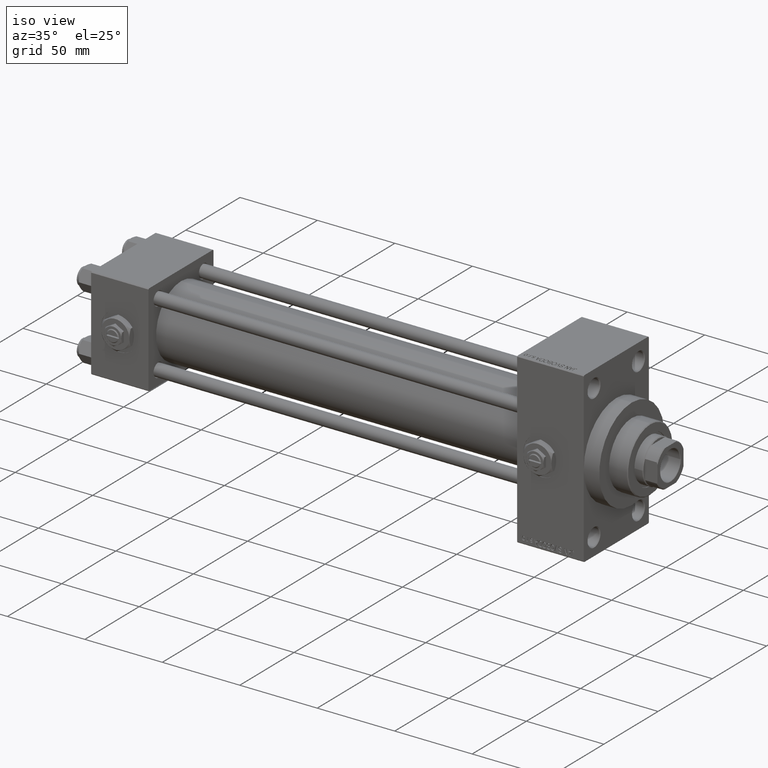
[diagram: clean part render]
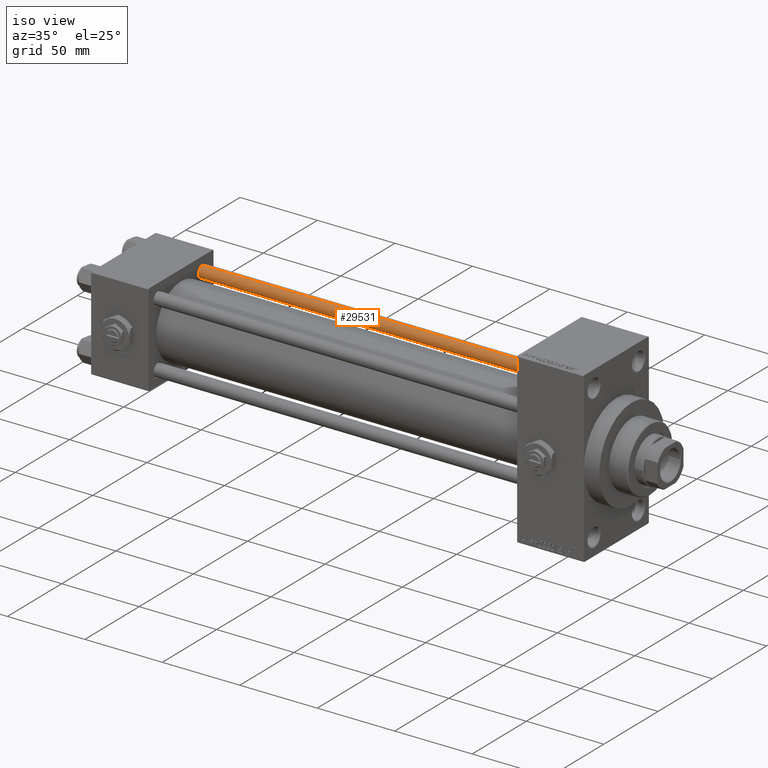
[diagram: same view with one face highlighted and labeled with its STEP entity id]
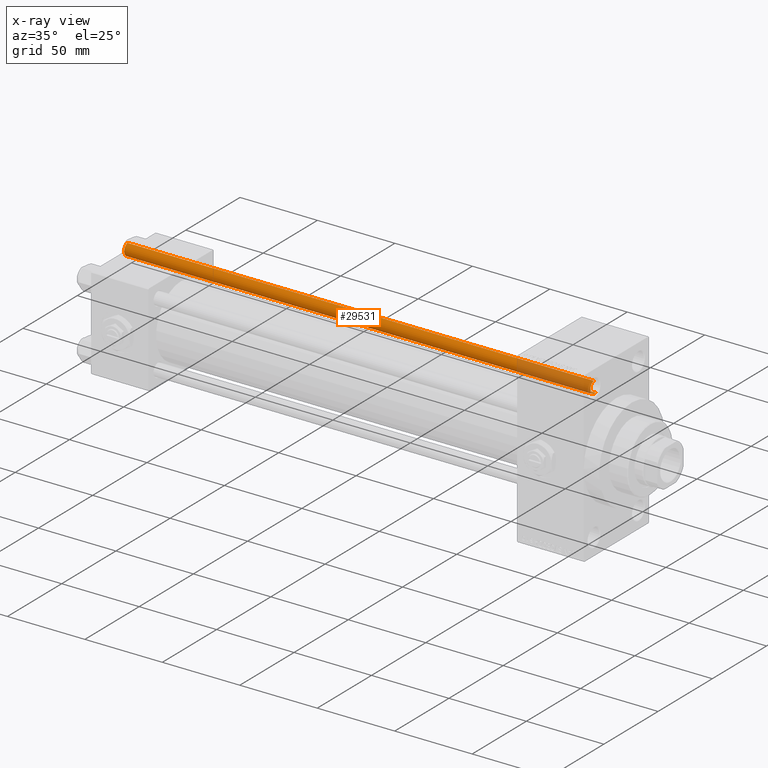
[diagram: x-ray of the same camera — body ghosted, the highlighted face saturated]
A machine part, iso view. The second image highlights one B-rep face of the part: STEP entity #29531.
The next image is the same camera in x-ray: the body ghosted, the highlighted face saturated — about 16% of this face is hidden behind the body in this view.
In plain terms, the highlighted cylindrical surface (edge-blend (fillet) strip) has radius 4 mm, axis along (-1, -0, 0).
Its self-contained STEP definition (entity closure, byte-faithful):
#255 = EDGE_CURVE ( 'NONE', #36488, #21293, #3752, .T. ) ;
#319 = VECTOR ( 'NONE', #9535, 1000.000000000000000 ) ;
#3650 = CARTESIAN_POINT ( 'NONE',  ( 0.000000000000000000, 0.000000000000000000, 302.0000000000000000 ) ) ;
#3752 = CIRCLE ( 'NONE', #25243, 4.000000000000000000 ) ;
#5460 = CARTESIAN_POINT ( 'NONE',  ( 0.000000000000000000, 0.000000000000000000, 301.4999999999999432 ) ) ;
#7074 = VERTEX_POINT ( 'NONE', #31026 ) ;
#7387 = FACE_OUTER_BOUND ( 'NONE', #26936, .T. ) ;
#8332 = CARTESIAN_POINT ( 'NONE',  ( -4.000000000000000000, 0.000000000000000000, 302.0000000000000000 ) ) ;
#8792 = ORIENTED_EDGE ( 'NONE', *, *, #35538, .T. ) ;
#9203 = ORIENTED_EDGE ( 'NONE', *, *, #46979, .T. ) ;
#9535 = DIRECTION ( 'NONE',  ( -0.000000000000000000, -0.000000000000000000, -1.000000000000000000 ) ) ;
#9927 = VECTOR ( 'NONE', #23529, 1000.000000000000000 ) ;
#14817 = AXIS2_PLACEMENT_3D ( 'NONE', #22153, #37832, #34340 ) ;
#17027 = CARTESIAN_POINT ( 'NONE',  ( 4.000000000000000000, 4.898587196589412829E-16, 302.0000000000000000 ) ) ;
#18858 = DIRECTION ( 'NONE',  ( -0.000000000000000000, -0.000000000000000000, -1.000000000000000000 ) ) ;
#19900 = ORIENTED_EDGE ( 'NONE', *, *, #31905, .F. ) ;
#21293 = VERTEX_POINT ( 'NONE', #27465 ) ;
#22153 = CARTESIAN_POINT ( 'NONE',  ( 0.000000000000000000, 0.000000000000000000, 0.5000000000000559552 ) ) ;
#22592 = CYLINDRICAL_SURFACE ( 'NONE', #27344, 4.000000000000000000 ) ;
#23340 = CARTESIAN_POINT ( 'NONE',  ( 4.000000000000000000, 4.898587196589412829E-16, 0.5000000000000559552 ) ) ;
#23529 = DIRECTION ( 'NONE',  ( -0.000000000000000000, -0.000000000000000000, -1.000000000000000000 ) ) ;
#24008 = LINE ( 'NONE', #17027, #319 ) ;
#25243 = AXIS2_PLACEMENT_3D ( 'NONE', #5460, #35612, #39603 ) ;
#26936 = EDGE_LOOP ( 'NONE', ( #19900, #48345, #9203, #8792 ) ) ;
#27344 = AXIS2_PLACEMENT_3D ( 'NONE', #3650, #18858, #34051 ) ;
#27465 = CARTESIAN_POINT ( 'NONE',  ( -4.000000000000000000, 0.000000000000000000, 301.4999999999999432 ) ) ;
#29531 = ADVANCED_FACE ( 'NONE', ( #7387 ), #22592, .T. ) ;
#31026 = CARTESIAN_POINT ( 'NONE',  ( -4.000000000000000000, 0.000000000000000000, 0.5000000000000559552 ) ) ;
#31269 = LINE ( 'NONE', #8332, #9927 ) ;
#31905 = EDGE_CURVE ( 'NONE', #36488, #38708, #24008, .T. ) ;
#34051 = DIRECTION ( 'NONE',  ( -1.000000000000000000, 0.000000000000000000, 0.000000000000000000 ) ) ;
#34340 = DIRECTION ( 'NONE',  ( 1.000000000000000000, 0.000000000000000000, 0.000000000000000000 ) ) ;
#35538 = EDGE_CURVE ( 'NONE', #7074, #38708, #45051, .T. ) ;
#35612 = DIRECTION ( 'NONE',  ( 0.000000000000000000, 0.000000000000000000, -1.000000000000000000 ) ) ;
#36488 = VERTEX_POINT ( 'NONE', #47771 ) ;
#37832 = DIRECTION ( 'NONE',  ( -0.000000000000000000, -0.000000000000000000, 1.000000000000000000 ) ) ;
#38708 = VERTEX_POINT ( 'NONE', #23340 ) ;
#39603 = DIRECTION ( 'NONE',  ( 1.000000000000000000, 0.000000000000000000, 0.000000000000000000 ) ) ;
#45051 = CIRCLE ( 'NONE', #14817, 4.000000000000000000 ) ;
#46979 = EDGE_CURVE ( 'NONE', #21293, #7074, #31269, .T. ) ;
#47771 = CARTESIAN_POINT ( 'NONE',  ( 4.000000000000000000, 4.898587196589412829E-16, 301.4999999999999432 ) ) ;
#48345 = ORIENTED_EDGE ( 'NONE', *, *, #255, .T. ) ;